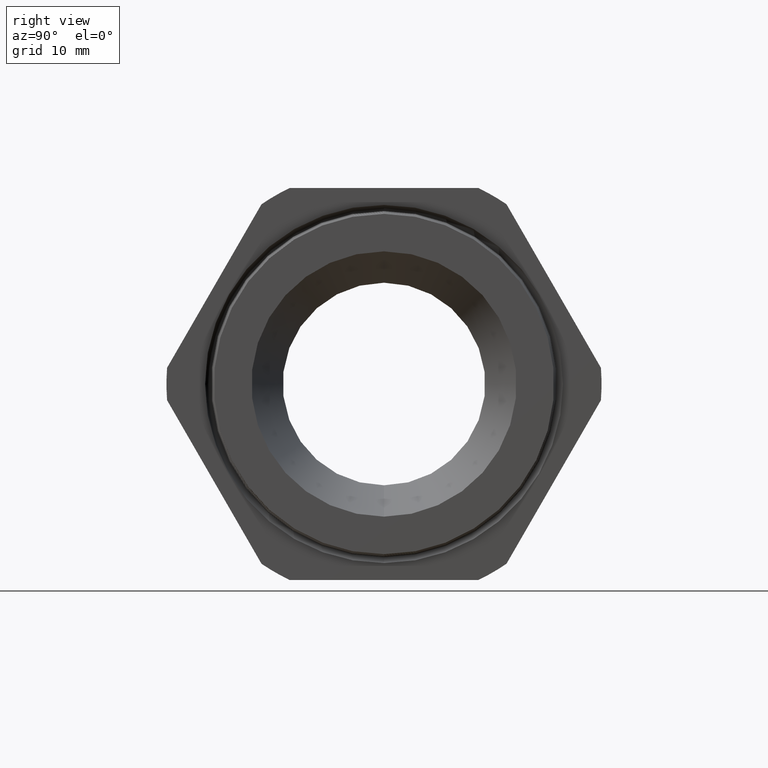
[diagram: clean part render]
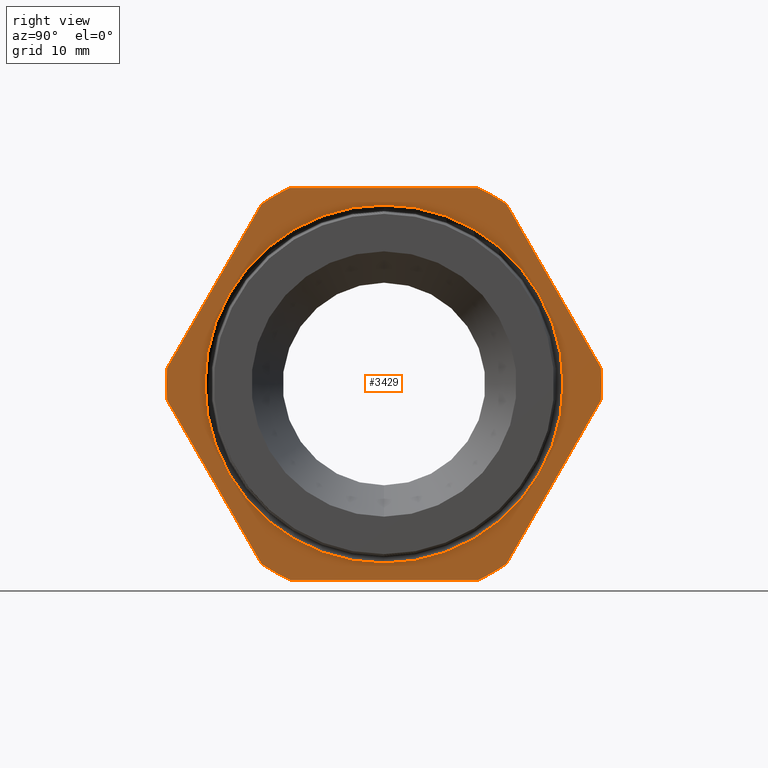
[diagram: same view with one face highlighted and labeled with its STEP entity id]
A machine part, right view. The second image highlights one B-rep face of the part: STEP entity #3429.
In plain terms, the highlighted planar face has unit normal (1, 0, 0).
Its self-contained STEP definition (entity closure, byte-faithful):
#1172 = CARTESIAN_POINT ( 'NONE',  ( -0.3100000000000000000, 0.0000000000000000000, 0.0000000000000000000 ) ) ;
#1210 = DIRECTION ( 'NONE',  ( 0.0000000000000000000, 0.0000000000000000000, -1.000000000000000000 ) ) ;
#1211 = DIRECTION ( 'NONE',  ( 1.000000000000000000, 0.0000000000000000000, 0.0000000000000000000 ) ) ;
#1212 = CARTESIAN_POINT ( 'NONE',  ( -0.3100000000000000000, 2.359999999999999900, 0.0000000000000000000 ) ) ;
#1213 = AXIS2_PLACEMENT_3D ( 'NONE', #1212, #1211, #1210 ) ;
#1214 = PLANE ( 'NONE',  #1213 ) ;
#1215 = FACE_BOUND ( 'NONE', #4433, .T. ) ;
#1216 = FACE_OUTER_BOUND ( 'NONE', #3427, .T. ) ;
#1221 = DIRECTION ( 'NONE',  ( 0.0000000000000000000, 0.4999999999999998300, 0.8660254037844386000 ) ) ;
#1222 = VECTOR ( 'NONE', #1221, 39.37007874015748900 ) ;
#1223 = CARTESIAN_POINT ( 'NONE',  ( -0.3100000000000000000, 1.611909976465637700, 0.4319099764656373400 ) ) ;
#1224 = LINE ( 'NONE', #1223, #1222 ) ;
#1225 = CARTESIAN_POINT ( 'NONE',  ( -0.3100000000000000000, 1.306152847968161000, -0.09767690486835835200 ) ) ;
#1226 = CARTESIAN_POINT ( 'NONE',  ( -0.3100000000000000000, 0.7376671049631152700, -1.082323095131641400 ) ) ;
#1227 = DIRECTION ( 'NONE',  ( 0.0000000000000000000, 0.0000000000000000000, -1.000000000000000000 ) ) ;
#1228 = DIRECTION ( 'NONE',  ( 1.000000000000000000, 0.0000000000000000000, 0.0000000000000000000 ) ) ;
#1229 = AXIS2_PLACEMENT_3D ( 'NONE', #1172, #1228, #1227 ) ;
#1230 = CIRCLE ( 'NONE', #1229, 1.309800000000000100 ) ;
#1239 = CARTESIAN_POINT ( 'NONE',  ( -0.3100000000000000000, -0.7376671049631149400, 1.082323095131641800 ) ) ;
#1240 = DIRECTION ( 'NONE',  ( 0.0000000000000000000, 0.0000000000000000000, -1.000000000000000000 ) ) ;
#1241 = DIRECTION ( 'NONE',  ( 1.000000000000000000, 0.0000000000000000000, 0.0000000000000000000 ) ) ;
#1242 = CARTESIAN_POINT ( 'NONE',  ( -0.3100000000000000000, 0.0000000000000000000, 0.0000000000000000000 ) ) ;
#1243 = AXIS2_PLACEMENT_3D ( 'NONE', #1242, #1241, #1240 ) ;
#1244 = CIRCLE ( 'NONE', #1243, 1.309800000000000100 ) ;
#1256 = DIRECTION ( 'NONE',  ( 0.0000000000000000000, -0.4999999999999995600, -0.8660254037844389300 ) ) ;
#1257 = VECTOR ( 'NONE', #1256, 39.37007874015748100 ) ;
#1258 = CARTESIAN_POINT ( 'NONE',  ( -0.3100000000000000000, -0.4319099764656398900, 1.611909976465636800 ) ) ;
#1259 = LINE ( 'NONE', #1258, #1257 ) ;
#1278 = CARTESIAN_POINT ( 'NONE',  ( -0.3100000000000000000, 0.5684857430050472800, 1.179999999999999900 ) ) ;
#1280 = DIRECTION ( 'NONE',  ( 0.0000000000000000000, -1.000000000000000000, 0.0000000000000000000 ) ) ;
#1281 = VECTOR ( 'NONE', #1280, 39.37007874015748100 ) ;
#1282 = CARTESIAN_POINT ( 'NONE',  ( -0.3100000000000000000, 2.359999999999999900, 1.179999999999999900 ) ) ;
#1283 = LINE ( 'NONE', #1282, #1281 ) ;
#1284 = CARTESIAN_POINT ( 'NONE',  ( -0.3100000000000000000, -0.5684857430050480600, 1.179999999999999300 ) ) ;
#1310 = CARTESIAN_POINT ( 'NONE',  ( -0.3100000000000000000, 0.7376671049631148300, 1.082323095131641800 ) ) ;
#1311 = DIRECTION ( 'NONE',  ( 0.0000000000000000000, 0.0000000000000000000, -1.000000000000000000 ) ) ;
#1312 = DIRECTION ( 'NONE',  ( 1.000000000000000000, 0.0000000000000000000, 0.0000000000000000000 ) ) ;
#1313 = CARTESIAN_POINT ( 'NONE',  ( -0.3100000000000000000, 0.0000000000000000000, 0.0000000000000000000 ) ) ;
#1314 = AXIS2_PLACEMENT_3D ( 'NONE', #1313, #1312, #1311 ) ;
#1315 = CIRCLE ( 'NONE', #1314, 1.309800000000000100 ) ;
#1347 = DIRECTION ( 'NONE',  ( 0.0000000000000000000, -0.4999999999999998300, 0.8660254037844386000 ) ) ;
#1348 = VECTOR ( 'NONE', #1347, 39.37007874015748900 ) ;
#1349 = CARTESIAN_POINT ( 'NONE',  ( -0.3100000000000000000, 1.611909976465637700, -0.4319099764656374500 ) ) ;
#1350 = LINE ( 'NONE', #1349, #1348 ) ;
#1392 = CARTESIAN_POINT ( 'NONE',  ( -0.3100000000000000000, 1.306152847968161000, 0.09767690486835799200 ) ) ;
#1556 = CARTESIAN_POINT ( 'NONE',  ( -0.3100000000000000000, 1.320176262034999400E-016, 1.078005726185017100 ) ) ;
#1623 = CARTESIAN_POINT ( 'NONE',  ( -0.3100000000000000000, 0.0000000000000000000, -1.078005726185017100 ) ) ;
#1624 = DIRECTION ( 'NONE',  ( 0.0000000000000000000, 0.0000000000000000000, -1.000000000000000000 ) ) ;
#1625 = DIRECTION ( 'NONE',  ( -1.000000000000000000, 0.0000000000000000000, 0.0000000000000000000 ) ) ;
#1626 = CARTESIAN_POINT ( 'NONE',  ( -0.3100000000000000000, 0.0000000000000000000, 0.0000000000000000000 ) ) ;
#1627 = AXIS2_PLACEMENT_3D ( 'NONE', #1626, #1625, #1624 ) ;
#1628 = CIRCLE ( 'NONE', #1627, 1.078005726185017100 ) ;
#2493 = CARTESIAN_POINT ( 'NONE',  ( -0.3100000000000000000, -0.7376671049631138300, -1.082323095131642500 ) ) ;
#2496 = CARTESIAN_POINT ( 'NONE',  ( -0.3100000000000000000, -0.5684857430050462800, -1.180000000000000200 ) ) ;
#2528 = DIRECTION ( 'NONE',  ( 0.0000000000000000000, 0.5000000000000000000, -0.8660254037844386000 ) ) ;
#2529 = VECTOR ( 'NONE', #2528, 39.37007874015748100 ) ;
#2530 = CARTESIAN_POINT ( 'NONE',  ( -0.3100000000000000000, -0.4319099764656371700, -1.611909976465637500 ) ) ;
#2531 = LINE ( 'NONE', #2530, #2529 ) ;
#2534 = DIRECTION ( 'NONE',  ( 0.0000000000000000000, 0.0000000000000000000, -1.000000000000000000 ) ) ;
#2535 = DIRECTION ( 'NONE',  ( 1.000000000000000000, 0.0000000000000000000, 0.0000000000000000000 ) ) ;
#2536 = CARTESIAN_POINT ( 'NONE',  ( -0.3100000000000000000, 0.0000000000000000000, 0.0000000000000000000 ) ) ;
#2537 = AXIS2_PLACEMENT_3D ( 'NONE', #2536, #2535, #2534 ) ;
#2538 = CIRCLE ( 'NONE', #2537, 1.309800000000000100 ) ;
#2539 = DIRECTION ( 'NONE',  ( 0.0000000000000000000, 1.000000000000000000, 0.0000000000000000000 ) ) ;
#2540 = VECTOR ( 'NONE', #2539, 39.37007874015748100 ) ;
#2541 = CARTESIAN_POINT ( 'NONE',  ( -0.3100000000000000000, 2.359999999999999900, -1.180000000000000200 ) ) ;
#2542 = LINE ( 'NONE', #2541, #2540 ) ;
#2547 = CARTESIAN_POINT ( 'NONE',  ( -0.3100000000000000000, -1.306152847968161000, -0.09767690486835753400 ) ) ;
#2567 = DIRECTION ( 'NONE',  ( 0.0000000000000000000, 0.0000000000000000000, -1.000000000000000000 ) ) ;
#2568 = DIRECTION ( 'NONE',  ( -1.000000000000000000, 0.0000000000000000000, 0.0000000000000000000 ) ) ;
#2569 = CARTESIAN_POINT ( 'NONE',  ( -0.3100000000000000000, 0.0000000000000000000, 0.0000000000000000000 ) ) ;
#2570 = AXIS2_PLACEMENT_3D ( 'NONE', #2569, #2568, #2567 ) ;
#2571 = CIRCLE ( 'NONE', #2570, 1.078005726185017100 ) ;
#2583 = DIRECTION ( 'NONE',  ( 0.0000000000000000000, 0.0000000000000000000, -1.000000000000000000 ) ) ;
#2584 = DIRECTION ( 'NONE',  ( 1.000000000000000000, 0.0000000000000000000, 0.0000000000000000000 ) ) ;
#2585 = CARTESIAN_POINT ( 'NONE',  ( -0.3100000000000000000, 0.0000000000000000000, 0.0000000000000000000 ) ) ;
#2586 = AXIS2_PLACEMENT_3D ( 'NONE', #2585, #2584, #2583 ) ;
#2587 = CIRCLE ( 'NONE', #2586, 1.309800000000000100 ) ;
#2588 = CARTESIAN_POINT ( 'NONE',  ( -0.3100000000000000000, -1.306152847968161200, 0.09767690486835675600 ) ) ;
#2632 = DIRECTION ( 'NONE',  ( 0.0000000000000000000, 0.0000000000000000000, -1.000000000000000000 ) ) ;
#2633 = DIRECTION ( 'NONE',  ( 1.000000000000000000, 0.0000000000000000000, 0.0000000000000000000 ) ) ;
#2634 = CARTESIAN_POINT ( 'NONE',  ( -0.3100000000000000000, 0.0000000000000000000, 0.0000000000000000000 ) ) ;
#2635 = AXIS2_PLACEMENT_3D ( 'NONE', #2634, #2633, #2632 ) ;
#2636 = CIRCLE ( 'NONE', #2635, 1.309799999999999900 ) ;
#2637 = CARTESIAN_POINT ( 'NONE',  ( -0.3100000000000000000, 0.5684857430050462800, -1.179999999999999900 ) ) ;
#3418 = EDGE_CURVE ( 'NONE', #3422, #3533, #1230, .T. ) ;
#3420 = ORIENTED_EDGE ( 'NONE', *, *, #3418, .T. ) ;
#3421 = VERTEX_POINT ( 'NONE', #1226 ) ;
#3422 = VERTEX_POINT ( 'NONE', #1225 ) ;
#3423 = EDGE_CURVE ( 'NONE', #3421, #3422, #1224, .T. ) ;
#3424 = ORIENTED_EDGE ( 'NONE', *, *, #3423, .T. ) ;
#3427 = EDGE_LOOP ( 'NONE', ( #3424, #3420, #3493, #3474, #3460, #3446, #3445, #4427, #4422, #4409, #4415, #4471 ) ) ;
#3429 = ADVANCED_FACE ( 'NONE', ( #1216, #1215 ), #1214, .T. ) ;
#3440 = EDGE_CURVE ( 'NONE', #3448, #4426, #1259, .T. ) ;
#3445 = ORIENTED_EDGE ( 'NONE', *, *, #3440, .T. ) ;
#3446 = ORIENTED_EDGE ( 'NONE', *, *, #3447, .T. ) ;
#3447 = EDGE_CURVE ( 'NONE', #3456, #3448, #1244, .T. ) ;
#3448 = VERTEX_POINT ( 'NONE', #1239 ) ;
#3456 = VERTEX_POINT ( 'NONE', #1284 ) ;
#3457 = EDGE_CURVE ( 'NONE', #3459, #3456, #1283, .T. ) ;
#3459 = VERTEX_POINT ( 'NONE', #1278 ) ;
#3460 = ORIENTED_EDGE ( 'NONE', *, *, #3457, .T. ) ;
#3472 = EDGE_CURVE ( 'NONE', #3473, #3459, #1315, .T. ) ;
#3473 = VERTEX_POINT ( 'NONE', #1310 ) ;
#3474 = ORIENTED_EDGE ( 'NONE', *, *, #3472, .T. ) ;
#3485 = EDGE_CURVE ( 'NONE', #3533, #3473, #1350, .T. ) ;
#3493 = ORIENTED_EDGE ( 'NONE', *, *, #3485, .T. ) ;
#3533 = VERTEX_POINT ( 'NONE', #1392 ) ;
#3613 = VERTEX_POINT ( 'NONE', #1556 ) ;
#3638 = EDGE_CURVE ( 'NONE', #3639, #3613, #1628, .T. ) ;
#3639 = VERTEX_POINT ( 'NONE', #1623 ) ;
#4405 = VERTEX_POINT ( 'NONE', #2496 ) ;
#4408 = VERTEX_POINT ( 'NONE', #2493 ) ;
#4409 = ORIENTED_EDGE ( 'NONE', *, *, #4418, .T. ) ;
#4411 = VERTEX_POINT ( 'NONE', #2547 ) ;
#4415 = ORIENTED_EDGE ( 'NONE', *, *, #4416, .T. ) ;
#4416 = EDGE_CURVE ( 'NONE', #4405, #4472, #2542, .T. ) ;
#4418 = EDGE_CURVE ( 'NONE', #4408, #4405, #2538, .T. ) ;
#4422 = ORIENTED_EDGE ( 'NONE', *, *, #4423, .T. ) ;
#4423 = EDGE_CURVE ( 'NONE', #4411, #4408, #2531, .T. ) ;
#4426 = VERTEX_POINT ( 'NONE', #2588 ) ;
#4427 = ORIENTED_EDGE ( 'NONE', *, *, #4428, .T. ) ;
#4428 = EDGE_CURVE ( 'NONE', #4426, #4411, #2587, .T. ) ;
#4433 = EDGE_LOOP ( 'NONE', ( #4435, #4438 ) ) ;
#4435 = ORIENTED_EDGE ( 'NONE', *, *, #3638, .T. ) ;
#4438 = ORIENTED_EDGE ( 'NONE', *, *, #4440, .T. ) ;
#4440 = EDGE_CURVE ( 'NONE', #3613, #3639, #2571, .T. ) ;
#4471 = ORIENTED_EDGE ( 'NONE', *, *, #4473, .T. ) ;
#4472 = VERTEX_POINT ( 'NONE', #2637 ) ;
#4473 = EDGE_CURVE ( 'NONE', #4472, #3421, #2636, .T. ) ;